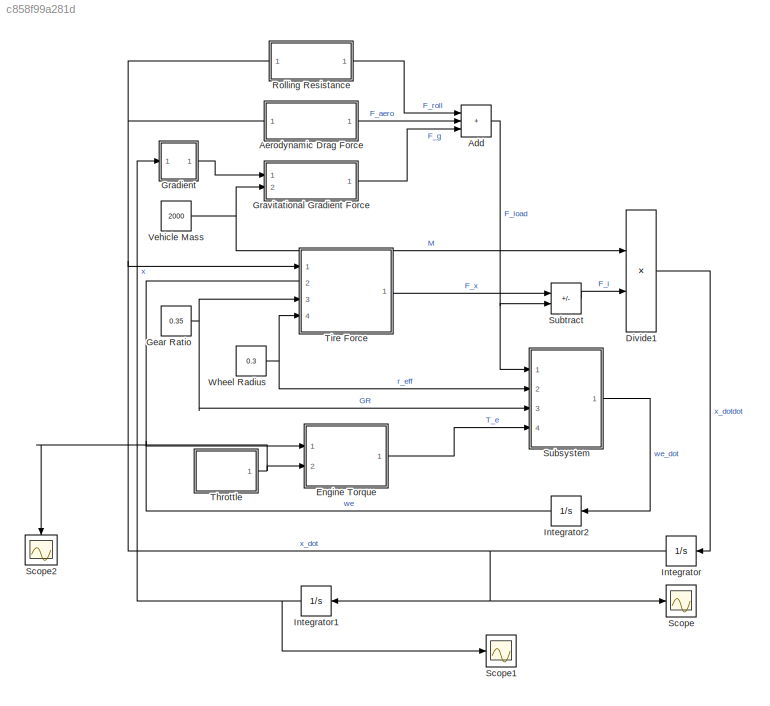
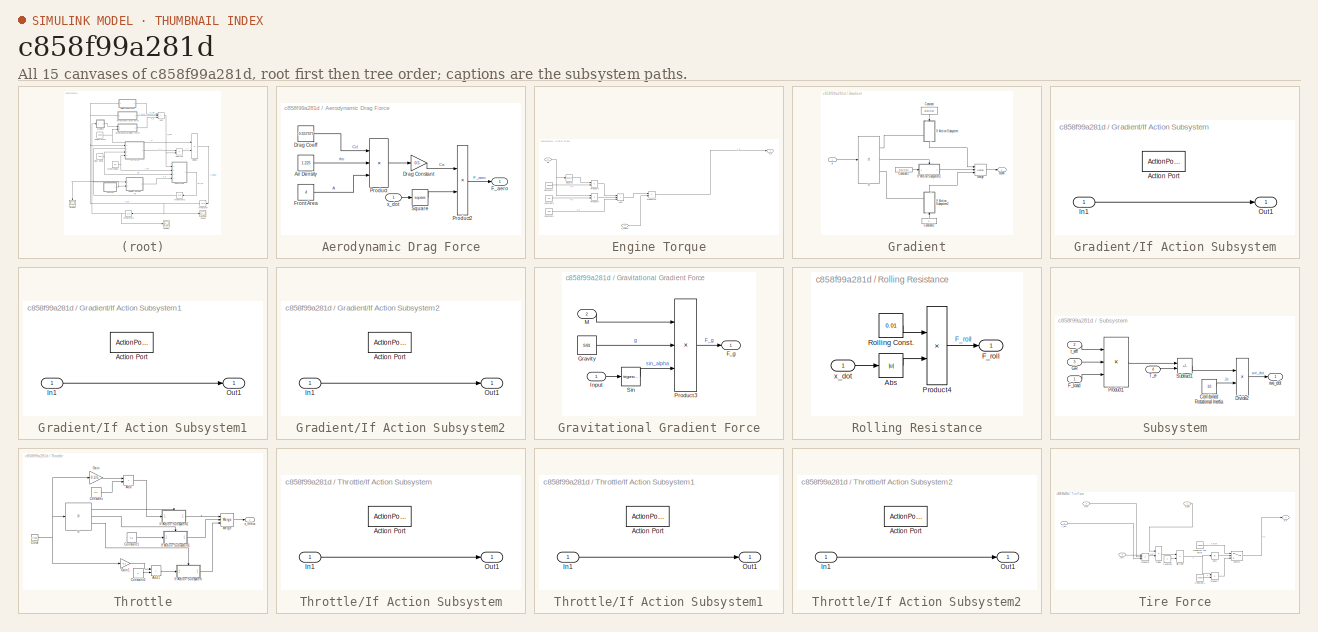
[diagram: thumbnail index - all 15 canvases of the model, root first then tree order]
MODEL slx_c858f99a281d
KIND model
CONFIG AbsTol = auto
CONFIG EnableMultiTasking = off
CONFIG FixedStep = auto
CONFIG MaxStep = auto
CONFIG MinStep = auto
CONFIG RelTol = 1e-3
CONFIG SampleTimeConstraint = Unconstrained
CONFIG SolverName = VariableStepAuto
CONFIG StartTime = 0.0
CONFIG StopTime = 20
BLOCK [Sum] Add
  IconShape = rectangular
  Inputs = +++
  Ports = [3, 1]
BLOCK [SubSystem] Aerodynamic Drag Force
  Ports = [1, 1]
  RequestExecContextInheritance = off
BLOCK [Constant] Aerodynamic Drag Force/Air Density
  Value = 1.225
BLOCK [Constant] Aerodynamic Drag Force/Drag Coeff
  Value = 0.557377
BLOCK [Gain] Aerodynamic Drag Force/Drag Constant
  Gain = 0.5
BLOCK [Outport] Aerodynamic Drag Force/F_aero
BLOCK [Constant] Aerodynamic Drag Force/Front Area
  Value = 4
BLOCK [Product] Aerodynamic Drag Force/Product
  Inputs = 3
  Ports = [3, 1]
BLOCK [Product] Aerodynamic Drag Force/Product2
  Ports = [2, 1]
BLOCK [Math] Aerodynamic Drag Force/Square
  Operator = square
  Ports = [1, 1]
BLOCK [Inport] Aerodynamic Drag Force/x_dot
BLOCK [Product] Divide1
  Inputs = /*
  Ports = [2, 1]
BLOCK [SubSystem] Engine Torque
  Ports = [2, 1]
  RequestExecContextInheritance = off
BLOCK [Sum] Engine Torque/Add1
  IconShape = rectangular
  Inputs = +++
  Ports = [3, 1]
BLOCK [Constant] Engine Torque/Constant2
  Value = 400
BLOCK [Constant] Engine Torque/Constant3
  Value = 0.1
BLOCK [Constant] Engine Torque/Constant4
  Value = -0.0002
BLOCK [Product] Engine Torque/Product10
  Ports = [2, 1]
BLOCK [Product] Engine Torque/Product8
  Ports = [2, 1]
BLOCK [Product] Engine Torque/Product9
  Ports = [2, 1]
BLOCK [Math] Engine Torque/Square1
  Operator = square
  Ports = [1, 1]
BLOCK [Outport] Engine Torque/T_e
BLOCK [Inport] Engine Torque/we
BLOCK [Inport] Engine Torque/x_theta
  Port = 2
BLOCK [Constant] Gear Ratio
  Value = 0.35
BLOCK [SubSystem] Gradient
  Ports = [1, 1]
  RequestExecContextInheritance = off
BLOCK [Constant] Gradient/Constant
  NameLocation = left
  Value = atan(3/60)
BLOCK [Constant] Gradient/Constant1
  Value = atan(9/90)
BLOCK [Constant] Gradient/Constant2
  NameLocation = right
  Value = 0
BLOCK [If] Gradient/If
  ElseIfExpressions = u1 < 90
  IfExpression = u1 < 60
  Ports = [1, 3]
BLOCK [SubSystem] Gradient/If Action Subsystem
  NameLocation = right
  Ports = [1, 1, 0, 0, 0, 0, 0, 1]
  RequestExecContextInheritance = off
  TreatAsAtomicUnit = on
BLOCK [ActionPort] Gradient/If Action Subsystem/Action Port
  ActionPortLabel = if(u1 < 60)
BLOCK [Inport] Gradient/If Action Subsystem/In1
BLOCK [Outport] Gradient/If Action Subsystem/Out1
BLOCK [SubSystem] Gradient/If Action Subsystem1
  Ports = [1, 1, 0, 0, 0, 0, 0, 1]
  RequestExecContextInheritance = off
  TreatAsAtomicUnit = on
BLOCK [ActionPort] Gradient/If Action Subsystem1/Action Port
  ActionPortLabel = elseif(u1 < 90)
BLOCK [Inport] Gradient/If Action Subsystem1/In1
BLOCK [Outport] Gradient/If Action Subsystem1/Out1
BLOCK [SubSystem] Gradient/If Action Subsystem2
  NameLocation = right
  Ports = [1, 1, 0, 0, 0, 0, 0, 1]
  RequestExecContextInheritance = off
  TreatAsAtomicUnit = on
BLOCK [ActionPort] Gradient/If Action Subsystem2/Action Port
  ActionPortLabel = else
BLOCK [Inport] Gradient/If Action Subsystem2/In1
BLOCK [Outport] Gradient/If Action Subsystem2/Out1
BLOCK [Merge] Gradient/Merge
  Inputs = 3
  Ports = [3, 1]
BLOCK [Outport] Gradient/alpha
BLOCK [Inport] Gradient/x
BLOCK [SubSystem] Gravitational Gradient Force
  Ports = [2, 1]
  RequestExecContextInheritance = off
BLOCK [Outport] Gravitational Gradient Force/F_g
BLOCK [Constant] Gravitational Gradient Force/Gravity
  Value = 9.81
BLOCK [Inport] Gravitational Gradient Force/Input
BLOCK [Inport] Gravitational Gradient Force/M
  Port = 2
BLOCK [Product] Gravitational Gradient Force/Product3
  Inputs = 3
  Ports = [3, 1]
BLOCK [Trigonometry] Gravitational Gradient Force/Sin
  Ports = [1, 1]
BLOCK [Integrator] Integrator
  InitialCondition = 5
  Ports = [1, 1]
BLOCK [Integrator] Integrator1
  Ports = [1, 1]
BLOCK [Integrator] Integrator2
  InitialCondition = 100
  Ports = [1, 1]
BLOCK [SubSystem] Rolling Resistance
  Ports = [1, 1]
  RequestExecContextInheritance = off
BLOCK [Abs] Rolling Resistance/Abs
  SaturateOnIntegerOverflow = off
BLOCK [Outport] Rolling Resistance/F_roll
BLOCK [Product] Rolling Resistance/Product4
  Ports = [2, 1]
BLOCK [Constant] Rolling Resistance/Rolling Const.
  Value = 0.01
BLOCK [Inport] Rolling Resistance/x_dot
BLOCK [Scope] Scope
  Floating = off
  NumInputPorts = 1
  Ports = [1]
  ScopeSpecificationString = Simulink.scopes.TimeScopeBlockCfg('CurrentConfiguration', extmgr.ConfigurationSet(extmgr.Configuration('Core','General UI',true),extmgr.Configuration('Core','Source UI',true),extmgr.Configuration('Sources','WiredSimulink',true),extmgr.Configuration('Visuals','Time Domain',true,'SerializedDisplays',{struct('MinYLimReal','2.81802','MaxYLimReal','24.63779','YLabelReal','','MinYLimMag','2.81802','MaxY...<+1358ch>
BLOCK [Scope] Scope1
  Floating = off
  NumInputPorts = 1
  Ports = [1]
  ScopeSpecificationString = Simulink.scopes.TimeScopeBlockCfg('CurrentConfiguration', extmgr.ConfigurationSet(extmgr.Configuration('Core','General UI',true),extmgr.Configuration('Core','Source UI',true),extmgr.Configuration('Sources','WiredSimulink',true,'DataLoggingVariableName','ScopeData1'),extmgr.Configuration('Visuals','Time Domain',true,'SerializedDisplays',{struct('MinYLimReal','-34.05797','MaxYLimReal','306.52177','Y...<+1401ch>
BLOCK [Scope] Scope2
  Floating = off
  NameLocation = left
  NumInputPorts = 1
  Ports = [1]
  ScopeSpecificationString = Simulink.scopes.TimeScopeBlockCfg('CurrentConfiguration', extmgr.ConfigurationSet(extmgr.Configuration('Core','General UI',true),extmgr.Configuration('Core','Source UI',true),extmgr.Configuration('Sources','WiredSimulink',true,'DataLoggingVariableName','ScopeData2'),extmgr.Configuration('Visuals','Time Domain',true,'SerializedDisplays',{struct('MinYLimReal','-0.0625','MaxYLimReal','0.5625','YLabel...<+1394ch>
BLOCK [SubSystem] Subsystem
  Ports = [4, 1]
  RequestExecContextInheritance = off
BLOCK [Constant] Subsystem/Combined Rotational Inertia
  Value = 10
BLOCK [Product] Subsystem/Divide2
  Inputs = */
  Ports = [2, 1]
BLOCK [Inport] Subsystem/F_load
BLOCK [Inport] Subsystem/GR
  Port = 3
BLOCK [Product] Subsystem/Product1
  Inputs = 3
  Ports = [3, 1]
BLOCK [Sum] Subsystem/Subtract1
  IconShape = rectangular
  Inputs = -+
  Ports = [2, 1]
BLOCK [Inport] Subsystem/T_e
  Port = 4
BLOCK [Inport] Subsystem/r_eff
  Port = 2
BLOCK [Outport] Subsystem/we_dot
BLOCK [Sum] Subtract
  IconShape = rectangular
  Inputs = +-
  Ports = [2, 1]
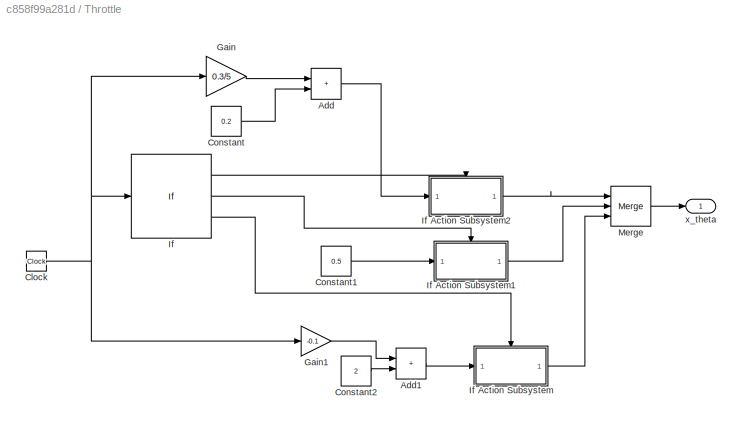
BLOCK [SubSystem] Throttle
  Ports = [0, 1]
  RequestExecContextInheritance = off
BLOCK [Sum] Throttle/Add
  IconShape = rectangular
  Ports = [2, 1]
BLOCK [Sum] Throttle/Add1
  IconShape = rectangular
  Ports = [2, 1]
BLOCK [Clock] Throttle/Clock
BLOCK [Constant] Throttle/Constant
  Value = 0.2
BLOCK [Constant] Throttle/Constant1
  Value = 0.5
BLOCK [Constant] Throttle/Constant2
  Value = 2
BLOCK [Gain] Throttle/Gain
  Gain = 0.3/5
BLOCK [Gain] Throttle/Gain1
  Gain = -0.1
BLOCK [If] Throttle/If
  ElseIfExpressions = u1<15
  IfExpression = u1 < 5
  Ports = [1, 3]
BLOCK [SubSystem] Throttle/If Action Subsystem
  Ports = [1, 1, 0, 0, 0, 0, 0, 1]
  RequestExecContextInheritance = off
  TreatAsAtomicUnit = on
BLOCK [ActionPort] Throttle/If Action Subsystem/Action Port
  ActionPortLabel = else
BLOCK [Inport] Throttle/If Action Subsystem/In1
BLOCK [Outport] Throttle/If Action Subsystem/Out1
BLOCK [SubSystem] Throttle/If Action Subsystem1
  Ports = [1, 1, 0, 0, 0, 0, 0, 1]
  RequestExecContextInheritance = off
  TreatAsAtomicUnit = on
BLOCK [ActionPort] Throttle/If Action Subsystem1/Action Port
  ActionPortLabel = elseif(u1<15)
BLOCK [Inport] Throttle/If Action Subsystem1/In1
BLOCK [Outport] Throttle/If Action Subsystem1/Out1
BLOCK [SubSystem] Throttle/If Action Subsystem2
  Ports = [1, 1, 0, 0, 0, 0, 0, 1]
  RequestExecContextInheritance = off
  TreatAsAtomicUnit = on
BLOCK [ActionPort] Throttle/If Action Subsystem2/Action Port
  ActionPortLabel = if(u1 < 5)
BLOCK [Inport] Throttle/If Action Subsystem2/In1
BLOCK [Outport] Throttle/If Action Subsystem2/Out1
BLOCK [Merge] Throttle/Merge
  Inputs = 3
  Ports = [3, 1]
BLOCK [Outport] Throttle/x_theta
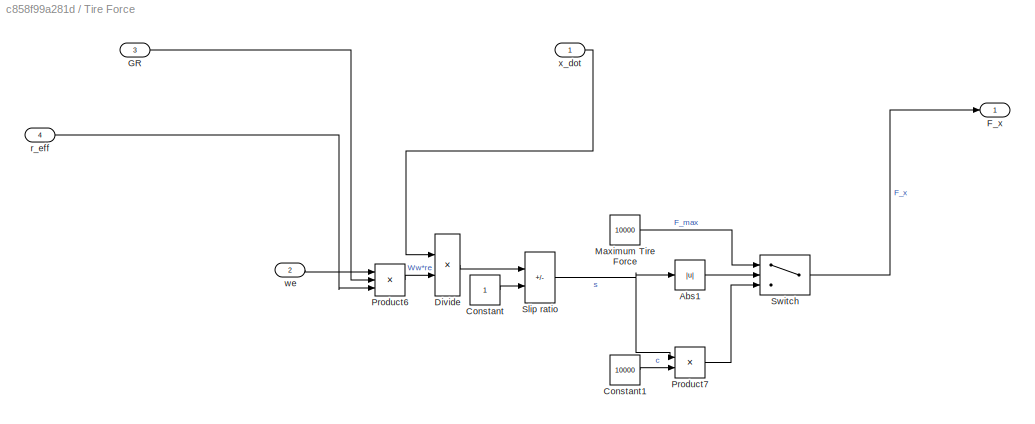
BLOCK [SubSystem] Tire Force
  Ports = [4, 1]
  RequestExecContextInheritance = off
BLOCK [Abs] Tire Force/Abs1
  SaturateOnIntegerOverflow = off
BLOCK [Constant] Tire Force/Constant
BLOCK [Constant] Tire Force/Constant1
  Value = 10000
BLOCK [Product] Tire Force/Divide
  Inputs = /*
  Ports = [2, 1]
BLOCK [Outport] Tire Force/F_x
BLOCK [Inport] Tire Force/GR
  Port = 3
BLOCK [Constant] Tire Force/Maximum Tire Force
  Value = 10000
BLOCK [Product] Tire Force/Product6
  Inputs = 3
  Ports = [3, 1]
BLOCK [Product] Tire Force/Product7
  Ports = [2, 1]
BLOCK [Sum] Tire Force/Slip ratio
  IconShape = rectangular
  Inputs = +-
  Ports = [2, 1]
BLOCK [Switch] Tire Force/Switch
  Criteria = u2 > Threshold
  InputSameDT = off
  NameLocation = top
  SaturateOnIntegerOverflow = off
  Threshold = 1
BLOCK [Inport] Tire Force/r_eff
  Port = 4
BLOCK [Inport] Tire Force/we
  Port = 2
BLOCK [Inport] Tire Force/x_dot
BLOCK [Constant] Vehicle Mass
  Value = 2000
BLOCK [Constant] Wheel Radius
  Value = 0.3
NET Add:1 -> Subsystem:1, Subtract:2
LINE Aerodynamic Drag Force/Air Density:1 -> Aerodynamic Drag Force/Product:2
LINE Aerodynamic Drag Force/Drag Coeff:1 -> Aerodynamic Drag Force/Product:1
LINE Aerodynamic Drag Force/Drag Constant:1 -> Aerodynamic Drag Force/Product2:1
LINE Aerodynamic Drag Force/Front Area:1 -> Aerodynamic Drag Force/Product:3
LINE Aerodynamic Drag Force/Product2:1 -> Aerodynamic Drag Force/F_aero:1
LINE Aerodynamic Drag Force/Product:1 -> Aerodynamic Drag Force/Drag Constant:1
LINE Aerodynamic Drag Force/Square:1 -> Aerodynamic Drag Force/Product2:2
LINE Aerodynamic Drag Force/x_dot:1 -> Aerodynamic Drag Force/Square:1
LINE Aerodynamic Drag Force:1 -> Add:2
LINE Divide1:1 -> Integrator:1
LINE Engine Torque/Add1:1 -> Engine Torque/Product10:1
LINE Engine Torque/Constant2:1 -> Engine Torque/Add1:3
LINE Engine Torque/Constant3:1 -> Engine Torque/Product8:2
LINE Engine Torque/Constant4:1 -> Engine Torque/Product9:2
LINE Engine Torque/Product10:1 -> Engine Torque/T_e:1
LINE Engine Torque/Product8:1 -> Engine Torque/Add1:2
LINE Engine Torque/Product9:1 -> Engine Torque/Add1:1
LINE Engine Torque/Square1:1 -> Engine Torque/Product9:1
NET Engine Torque/we:1 -> Engine Torque/Product8:1, Engine Torque/Square1:1
LINE Engine Torque/x_theta:1 -> Engine Torque/Product10:2
LINE Engine Torque:1 -> Subsystem:4
NET Gear Ratio:1 -> Subsystem:3, Tire Force:3
LINE Gradient/Constant1:1 -> Gradient/If Action Subsystem1:1
LINE Gradient/Constant2:1 -> Gradient/If Action Subsystem2:1
LINE Gradient/Constant:1 -> Gradient/If Action Subsystem:1
LINE Gradient/If Action Subsystem/In1:1 -> Gradient/If Action Subsystem/Out1:1
LINE Gradient/If Action Subsystem1/In1:1 -> Gradient/If Action Subsystem1/Out1:1
LINE Gradient/If Action Subsystem1:1 -> Gradient/Merge:2
LINE Gradient/If Action Subsystem2/In1:1 -> Gradient/If Action Subsystem2/Out1:1
LINE Gradient/If Action Subsystem2:1 -> Gradient/Merge:3
LINE Gradient/If Action Subsystem:1 -> Gradient/Merge:1
LINE Gradient/If:1 -> Gradient/If Action Subsystem:ifaction
LINE Gradient/If:2 -> Gradient/If Action Subsystem1:ifaction
LINE Gradient/If:3 -> Gradient/If Action Subsystem2:ifaction
LINE Gradient/Merge:1 -> Gradient/alpha:1
LINE Gradient/x:1 -> Gradient/If:1
LINE Gradient:1 -> Gravitational Gradient Force:1
LINE Gravitational Gradient Force/Gravity:1 -> Gravitational Gradient Force/Product3:2
LINE Gravitational Gradient Force/Input:1 -> Gravitational Gradient Force/Sin:1
LINE Gravitational Gradient Force/M:1 -> Gravitational Gradient Force/Product3:1
LINE Gravitational Gradient Force/Product3:1 -> Gravitational Gradient Force/F_g:1
LINE Gravitational Gradient Force/Sin:1 -> Gravitational Gradient Force/Product3:3
LINE Gravitational Gradient Force:1 -> Add:3
NET Integrator1:1 -> Gradient:1, Scope1:1
NET Integrator2:1 -> Engine Torque:1, Tire Force:2
NET Integrator:1 -> Aerodynamic Drag Force:1, Integrator1:1, Rolling Resistance:1, Scope:1, Tire Force:1
LINE Rolling Resistance/Abs:1 -> Rolling Resistance/Product4:2
LINE Rolling Resistance/Product4:1 -> Rolling Resistance/F_roll:1
LINE Rolling Resistance/Rolling Const.:1 -> Rolling Resistance/Product4:1
LINE Rolling Resistance/x_dot:1 -> Rolling Resistance/Abs:1
LINE Rolling Resistance:1 -> Add:1
LINE Subsystem/Combined Rotational Inertia:1 -> Subsystem/Divide2:2
LINE Subsystem/Divide2:1 -> Subsystem/we_dot:1
LINE Subsystem/F_load:1 -> Subsystem/Product1:3
LINE Subsystem/GR:1 -> Subsystem/Product1:2
LINE Subsystem/Product1:1 -> Subsystem/Subtract1:1
LINE Subsystem/Subtract1:1 -> Subsystem/Divide2:1
LINE Subsystem/T_e:1 -> Subsystem/Subtract1:2
LINE Subsystem/r_eff:1 -> Subsystem/Product1:1
LINE Subsystem:1 -> Integrator2:1
LINE Subtract:1 -> Divide1:2
LINE Throttle/Add1:1 -> Throttle/If Action Subsystem:1
LINE Throttle/Add:1 -> Throttle/If Action Subsystem2:1
NET Throttle/Clock:1 -> Throttle/Gain1:1, Throttle/Gain:1, Throttle/If:1
LINE Throttle/Constant1:1 -> Throttle/If Action Subsystem1:1
LINE Throttle/Constant2:1 -> Throttle/Add1:2
LINE Throttle/Constant:1 -> Throttle/Add:2
LINE Throttle/Gain1:1 -> Throttle/Add1:1
LINE Throttle/Gain:1 -> Throttle/Add:1
LINE Throttle/If Action Subsystem/In1:1 -> Throttle/If Action Subsystem/Out1:1
LINE Throttle/If Action Subsystem1/In1:1 -> Throttle/If Action Subsystem1/Out1:1
LINE Throttle/If Action Subsystem1:1 -> Throttle/Merge:2
LINE Throttle/If Action Subsystem2/In1:1 -> Throttle/If Action Subsystem2/Out1:1
LINE Throttle/If Action Subsystem2:1 -> Throttle/Merge:1
LINE Throttle/If Action Subsystem:1 -> Throttle/Merge:3
LINE Throttle/If:1 -> Throttle/If Action Subsystem2:ifaction
LINE Throttle/If:2 -> Throttle/If Action Subsystem1:ifaction
LINE Throttle/If:3 -> Throttle/If Action Subsystem:ifaction
LINE Throttle/Merge:1 -> Throttle/x_theta:1
NET Throttle:1 -> Engine Torque:2, Scope2:1
LINE Tire Force/Abs1:1 -> Tire Force/Switch:2
LINE Tire Force/Constant1:1 -> Tire Force/Product7:2
LINE Tire Force/Constant:1 -> Tire Force/Slip ratio:2
LINE Tire Force/Divide:1 -> Tire Force/Slip ratio:1
LINE Tire Force/GR:1 -> Tire Force/Product6:2
LINE Tire Force/Maximum Tire Force:1 -> Tire Force/Switch:1
LINE Tire Force/Product6:1 -> Tire Force/Divide:2
LINE Tire Force/Product7:1 -> Tire Force/Switch:3
NET Tire Force/Slip ratio:1 -> Tire Force/Abs1:1, Tire Force/Product7:1
LINE Tire Force/Switch:1 -> Tire Force/F_x:1
LINE Tire Force/r_eff:1 -> Tire Force/Product6:3
LINE Tire Force/we:1 -> Tire Force/Product6:1
LINE Tire Force/x_dot:1 -> Tire Force/Divide:1
LINE Tire Force:1 -> Subtract:1
NET Vehicle Mass:1 -> Divide1:1, Gravitational Gradient Force:2
NET Wheel Radius:1 -> Subsystem:2, Tire Force:4
note: NET lines group one-source signal fan-out (src -> all destinations, sorted); 1:1 wires keep LINE
